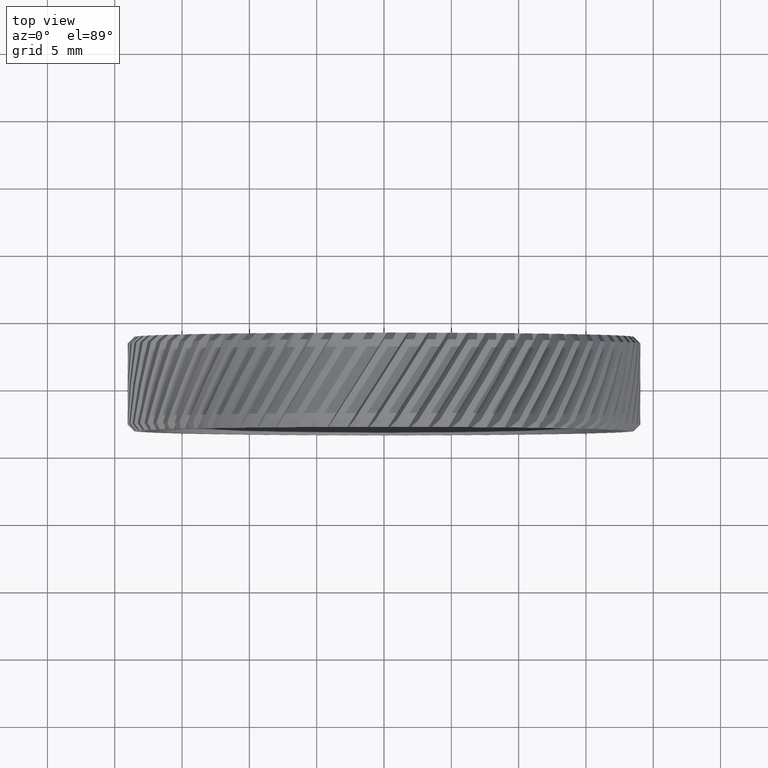
[diagram: clean part render]
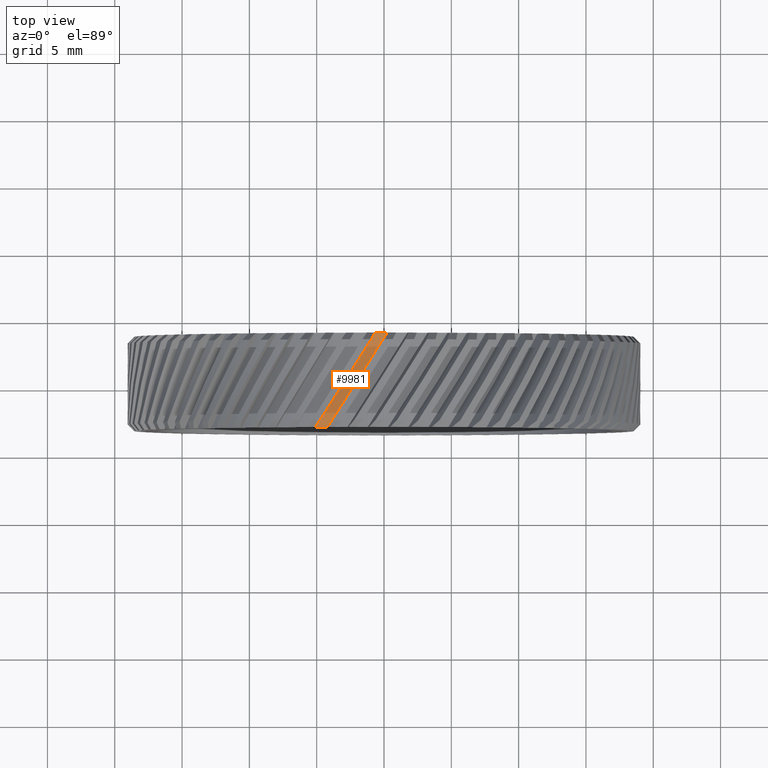
[diagram: same view with one face highlighted and labeled with its STEP entity id]
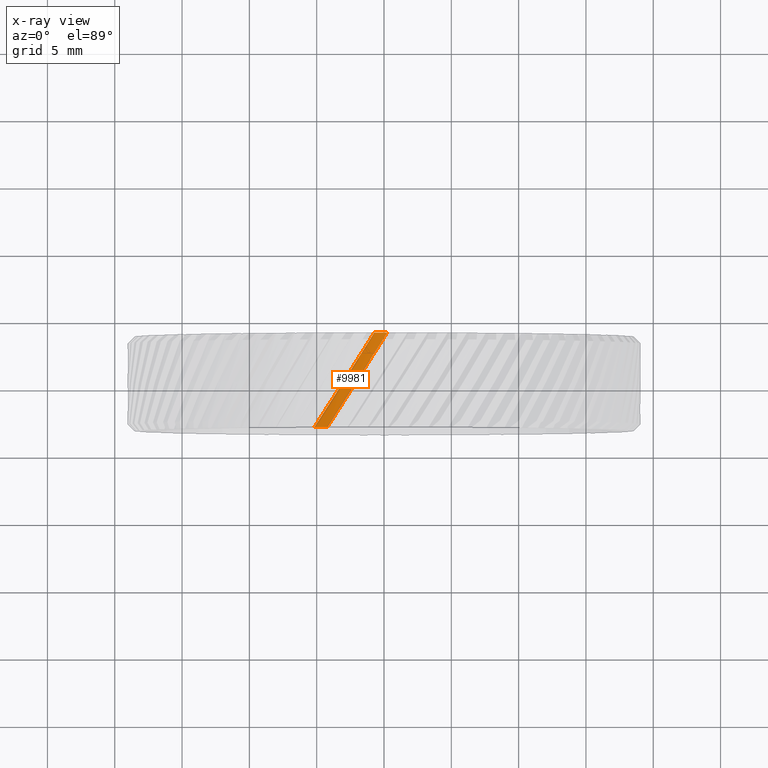
[diagram: x-ray of the same camera — body ghosted, the highlighted face saturated]
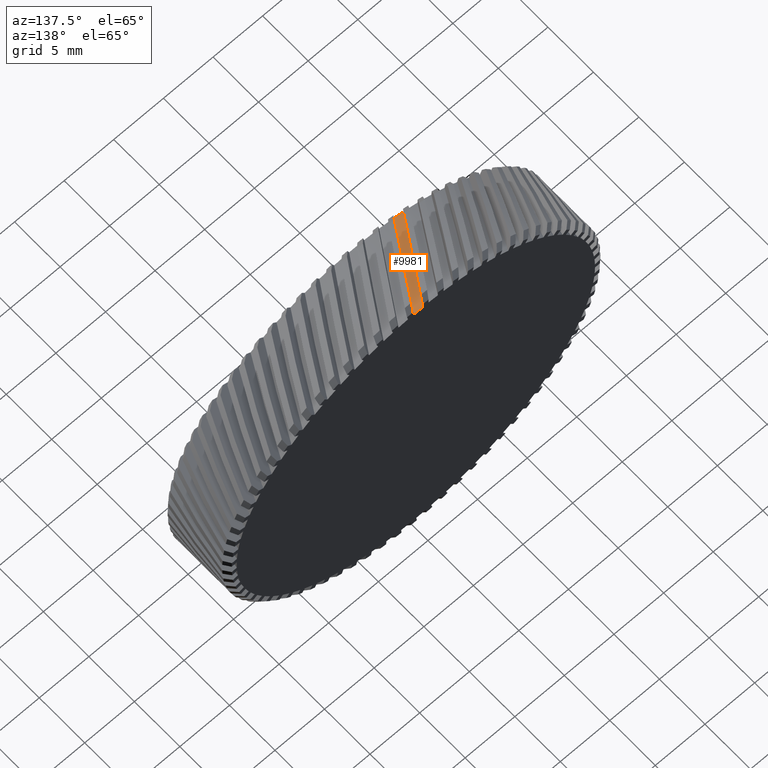
[diagram: same view with one face highlighted and labeled with its STEP entity id]
A machine part, top view. The second image highlights one B-rep face of the part: STEP entity #9981.
The next image is the same camera in x-ray: the body ghosted, the highlighted face saturated — about 0% of this face is hidden behind the body in this view.
A second angle (auxiliary view) of the same face is appended — the face is thin or edge-on in the first view.
In plain terms, the highlighted cylindrical surface (partial cylindrical patch) has radius 18.05 mm, axis along (0, 1, 0).
Its self-contained STEP definition (entity closure, byte-faithful):
#408 = CARTESIAN_POINT ( 'NONE',  ( -0.7136119113358256900, -6.330884482231915900, 18.03588805798039400 ) ) ;
#453 = DIRECTION ( 'NONE',  ( 0.08367784333231567700, 0.0000000000000000000, 0.9964928592495043700 ) ) ;
#463 = CARTESIAN_POINT ( 'NONE',  ( -2.742684169612966500, -11.06057732360097900, 17.90276934685323000 ) ) ;
#521 = CARTESIAN_POINT ( 'NONE',  ( 0.2339820599334147500, -6.330884482231915900, 18.04848338214680900 ) ) ;
#836 = CYLINDRICAL_SURFACE ( 'NONE', #1488, 18.05000000000000400 ) ;
#1488 = AXIS2_PLACEMENT_3D ( 'NONE', #11881, #1873, #453 ) ;
#1619 = CARTESIAN_POINT ( 'NONE',  ( -4.194780262497465300, -13.33088448223191600, 17.55580583594390000 ) ) ;
#1873 = DIRECTION ( 'NONE',  ( 0.0000000000000000000, 1.000000000000000000, 0.0000000000000000000 ) ) ;
#2218 =( BOUNDED_CURVE ( )  B_SPLINE_CURVE ( 3, ( #8237, #5709, #14510, #4503 ),
 .UNSPECIFIED., .F., .F. ) 
 B_SPLINE_CURVE_WITH_KNOTS ( ( 4, 4 ),
 ( 1.694117723285956100, 1.944671170535411400 ),
 .UNSPECIFIED. ) 
 CURVE ( )  GEOMETRIC_REPRESENTATION_ITEM ( )  RATIONAL_B_SPLINE_CURVE ( ( 1.000000000000000000, 0.9947754191975924900, 0.9947754191975924900, 1.000000000000000000 ) ) 
 REPRESENTATION_ITEM ( '' )  );
#2357 = EDGE_CURVE ( 'NONE', #13364, #5392, #4967, .T. ) ;
#3353 = EDGE_CURVE ( 'NONE', #11555, #3587, #10364, .T. ) ;
#3587 = VERTEX_POINT ( 'NONE', #8812 ) ;
#3594 = ORIENTED_EDGE ( 'NONE', *, *, #2357, .F. ) ;
#4121 = EDGE_CURVE ( 'NONE', #13364, #3587, #2218, .T. ) ;
#4374 = DIRECTION ( 'NONE',  ( 0.08367784333231655100, 0.0000000000000000000, 0.9964928592495041500 ) ) ;
#4503 = CARTESIAN_POINT ( 'NONE',  ( -5.163150657427152600, -13.33088448223191400, 17.29579068122384900 ) ) ;
#4967 = CIRCLE ( 'NONE', #13477, 18.05000000000000400 ) ;
#5392 = VERTEX_POINT ( 'NONE', #12880 ) ;
#5709 = CARTESIAN_POINT ( 'NONE',  ( -2.223883422916828100, -8.732488464476686500, 17.97613232338330700 ) ) ;
#6158 = AXIS2_PLACEMENT_3D ( 'NONE', #11845, #15797, #4374 ) ;
#6204 = ORIENTED_EDGE ( 'NONE', *, *, #10848, .T. ) ;
#8237 = CARTESIAN_POINT ( 'NONE',  ( -0.7136119113358256900, -6.330884482231915900, 18.03588805798039400 ) ) ;
#8812 = CARTESIAN_POINT ( 'NONE',  ( -5.163150657427152600, -13.33088448223191400, 17.29579068122384900 ) ) ;
#9201 = CARTESIAN_POINT ( 'NONE',  ( 0.0000000000000000000, -6.330884482231915900, 0.0000000000000000000 ) ) ;
#9950 = CARTESIAN_POINT ( 'NONE',  ( -4.194780262497465300, -13.33088448223191600, 17.55580583594390000 ) ) ;
#9981 = ADVANCED_FACE ( 'NONE', ( #11052 ), #836, .T. ) ;
#10364 = CIRCLE ( 'NONE', #6158, 18.05000000000000800 ) ;
#10373 = DIRECTION ( 'NONE',  ( -0.08367784333231567700, 0.0000000000000000000, -0.9964928592495043700 ) ) ;
#10421 = DIRECTION ( 'NONE',  ( -0.0000000000000000000, 1.000000000000000000, -0.0000000000000000000 ) ) ;
#10625 = ORIENTED_EDGE ( 'NONE', *, *, #4121, .T. ) ;
#10848 = EDGE_CURVE ( 'NONE', #11555, #5392, #15432, .T. ) ;
#11052 = FACE_OUTER_BOUND ( 'NONE', #13106, .T. ) ;
#11555 = VERTEX_POINT ( 'NONE', #9950 ) ;
#11778 = CARTESIAN_POINT ( 'NONE',  ( -1.258864947296948900, -8.715286743520588100, 18.06783677658562900 ) ) ;
#11845 = CARTESIAN_POINT ( 'NONE',  ( 0.0000000000000000000, -13.33088448223191600, 0.0000000000000000000 ) ) ;
#11881 = CARTESIAN_POINT ( 'NONE',  ( 0.0000000000000000000, 46.02073106022621100, 0.0000000000000000000 ) ) ;
#12880 = CARTESIAN_POINT ( 'NONE',  ( 0.2339820599334147500, -6.330884482231915900, 18.04848338214680900 ) ) ;
#13069 = ORIENTED_EDGE ( 'NONE', *, *, #3353, .F. ) ;
#13106 = EDGE_LOOP ( 'NONE', ( #6204, #3594, #10625, #13069 ) ) ;
#13364 = VERTEX_POINT ( 'NONE', #408 ) ;
#13477 = AXIS2_PLACEMENT_3D ( 'NONE', #9201, #10421, #10373 ) ;
#14510 = CARTESIAN_POINT ( 'NONE',  ( -3.714852694379933200, -11.07807651209395200, 17.72813752895572700 ) ) ;
#15432 =( BOUNDED_CURVE ( )  B_SPLINE_CURVE ( 3, ( #1619, #463, #11778, #521 ),
 .UNSPECIFIED., .F., .F. ) 
 B_SPLINE_CURVE_WITH_KNOTS ( ( 4, 4 ),
 ( 4.394070920343705400, 4.641576534375216700 ),
 .UNSPECIFIED. ) 
 CURVE ( )  GEOMETRIC_REPRESENTATION_ITEM ( )  RATIONAL_B_SPLINE_CURVE ( ( 1.000000000000000000, 0.9949015926433100200, 0.9949015926433100200, 1.000000000000000000 ) ) 
 REPRESENTATION_ITEM ( '' )  );
#15797 = DIRECTION ( 'NONE',  ( -0.0000000000000000000, -1.000000000000000000, -0.0000000000000000000 ) ) ;